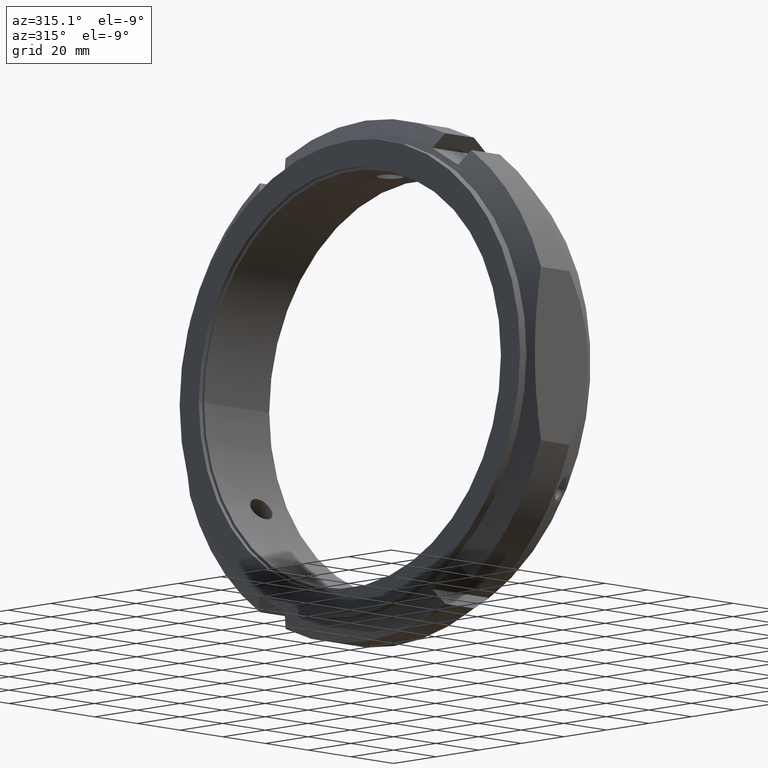
[diagram: clean part render]
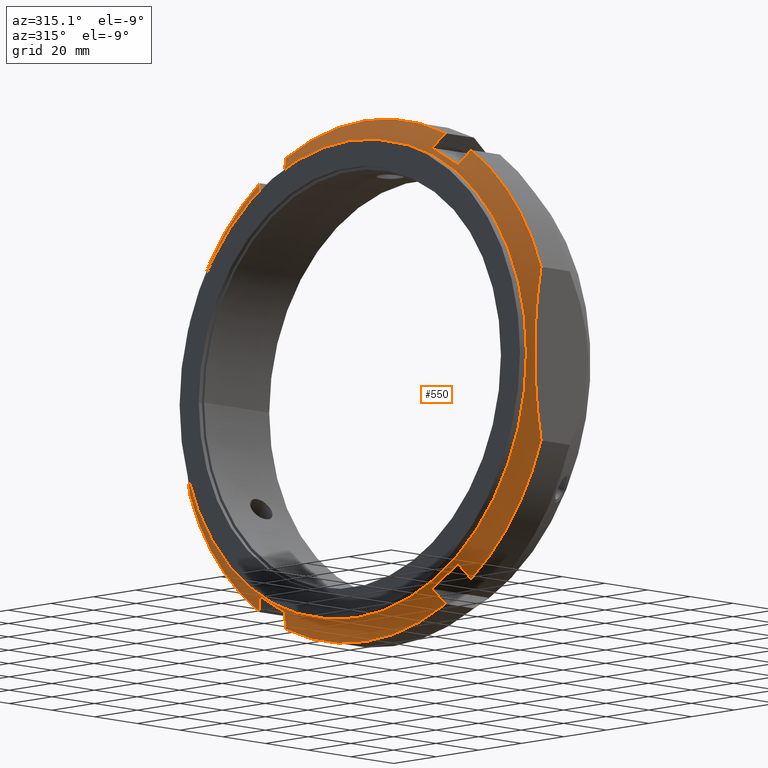
[diagram: same view with one face highlighted and labeled with its STEP entity id]
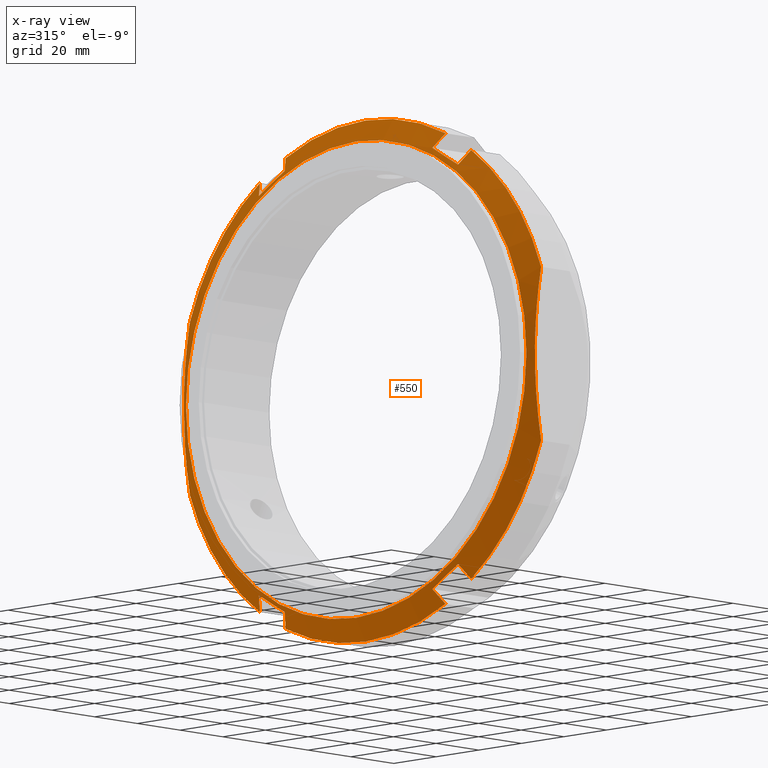
[diagram: x-ray of the same camera — body ghosted, the highlighted face saturated]
A machine part, auxiliary view. The second image highlights one B-rep face of the part: STEP entity #550.
The next image is the same camera in x-ray: the body ghosted, the highlighted face saturated — about 0% of this face is hidden behind the body in this view.
In plain terms, the highlighted conical surface has half-angle 60 deg.
Its self-contained STEP definition (entity closure, byte-faithful):
#73=CARTESIAN_POINT('',(4.039265774886872,46.812177826491151,-67.0810704084317));
#74=VERTEX_POINT('',#73);
#75=CARTESIAN_POINT('',(4.039265774886869,34.687822173509019,-74.0810704084317));
#76=VERTEX_POINT('',#75);
#77=CARTESIAN_POINT('',(4.039265774886872,46.812177826491151,-67.0810704084317));
#78=CARTESIAN_POINT('',(3.693420517558867,40.749999999940826,-70.581070408465905));
#79=CARTESIAN_POINT('',(4.039265774886869,34.687822173509019,-74.0810704084317));
#87=(BOUNDED_CURVE()B_SPLINE_CURVE(2,(#77,#78,#79),.UNSPECIFIED.,.F.,.U.)B_SPLINE_CURVE_WITH_KNOTS((3,3),(2.474416209105868,3.931830742063422),.UNSPECIFIED.)CURVE()GEOMETRIC_REPRESENTATION_ITEM()RATIONAL_B_SPLINE_CURVE((1.034904695295608,1.038714936606102,1.034904695295867))REPRESENTATION_ITEM(''));
#88=EDGE_CURVE('',#74,#76,#87,.T.);
#127=CARTESIAN_POINT('',(7.33012701892216,37.547597453828743,-79.034346492175374));
#128=VERTEX_POINT('',#127);
#129=CARTESIAN_POINT('',(4.039265774886869,34.687822173509019,-74.0810704084317));
#130=CARTESIAN_POINT('',(5.628916710248692,36.069568825908284,-76.474325813575618));
#131=CARTESIAN_POINT('',(7.330127018922168,37.54759745382875,-79.034346492175388));
#139=(BOUNDED_CURVE()B_SPLINE_CURVE(2,(#129,#130,#131),.UNSPECIFIED.,.F.,.U.)B_SPLINE_CURVE_WITH_KNOTS((3,3),(0.481038618437948,1.124755305385583),.UNSPECIFIED.)CURVE()GEOMETRIC_REPRESENTATION_ITEM()RATIONAL_B_SPLINE_CURVE((1.00085385238141,1.000998230660904,1.0))REPRESENTATION_ITEM(''));
#140=EDGE_CURVE('',#76,#128,#139,.T.);
#172=CARTESIAN_POINT('',(7.330127018922157,49.671953106810882,-72.034346492175374));
#173=VERTEX_POINT('',#172);
#174=CARTESIAN_POINT('',(7.33012701892217,49.671953106810889,-72.034346492175402));
#175=CARTESIAN_POINT('',(5.628916710423156,48.193924479042124,-69.474325813838377));
#176=CARTESIAN_POINT('',(4.039265774886872,46.812177826491151,-67.0810704084317));
#184=(BOUNDED_CURVE()B_SPLINE_CURVE(2,(#174,#175,#176),.UNSPECIFIED.,.F.,.U.)B_SPLINE_CURVE_WITH_KNOTS((3,3),(0.0,0.643716686994179),.UNSPECIFIED.)CURVE()GEOMETRIC_REPRESENTATION_ITEM()RATIONAL_B_SPLINE_CURVE((1.0,1.000998230642966,1.000853852365985))REPRESENTATION_ITEM(''));
#185=EDGE_CURVE('',#173,#74,#184,.T.);
#217=CARTESIAN_POINT('',(4.039265774886877,-46.81217782649108,-67.081070408431756));
#218=VERTEX_POINT('',#217);
#219=CARTESIAN_POINT('',(7.33012701892217,-49.671953106810982,-72.034346492175331));
#220=VERTEX_POINT('',#219);
#221=CARTESIAN_POINT('',(4.039265774886877,-46.81217782649108,-67.081070408431756));
#222=CARTESIAN_POINT('',(5.62891670980015,-48.193924478500428,-69.474325812900119));
#223=CARTESIAN_POINT('',(7.330127018922168,-49.671953106810989,-72.034346492175331));
#231=(BOUNDED_CURVE()B_SPLINE_CURVE(2,(#221,#222,#223),.UNSPECIFIED.,.F.,.U.)B_SPLINE_CURVE_WITH_KNOTS((3,3),(0.481038618560556,1.124755305385586),.UNSPECIFIED.)CURVE()GEOMETRIC_REPRESENTATION_ITEM()RATIONAL_B_SPLINE_CURVE((1.000853852416098,1.000998230701203,1.0))REPRESENTATION_ITEM(''));
#232=EDGE_CURVE('',#218,#220,#231,.T.);
#271=CARTESIAN_POINT('',(7.330127018922169,-37.547597453828843,-79.034346492175331));
#272=VERTEX_POINT('',#271);
#273=CARTESIAN_POINT('',(4.039265774886874,-34.687822173508941,-74.081070408431756));
#274=VERTEX_POINT('',#273);
#275=CARTESIAN_POINT('',(7.330127018922168,-37.54759745382885,-79.034346492175331));
#276=CARTESIAN_POINT('',(5.628916712011294,-36.069568827440889,-76.474325816230163));
#277=CARTESIAN_POINT('',(4.039265774886874,-34.687822173508941,-74.081070408431756));
#285=(BOUNDED_CURVE()B_SPLINE_CURVE(2,(#275,#276,#277),.UNSPECIFIED.,.F.,.U.)B_SPLINE_CURVE_WITH_KNOTS((3,3),(0.0,0.6437166874538),.UNSPECIFIED.)CURVE()GEOMETRIC_REPRESENTATION_ITEM()RATIONAL_B_SPLINE_CURVE((1.0,1.000998230550681,1.000853852286231))REPRESENTATION_ITEM(''));
#286=EDGE_CURVE('',#272,#274,#285,.T.);
#325=CARTESIAN_POINT('',(4.039265774886874,-34.687822173508941,-74.081070408431756));
#326=CARTESIAN_POINT('',(3.693420517558866,-40.750000000059273,-70.581070408397551));
#327=CARTESIAN_POINT('',(4.039265774886877,-46.81217782649108,-67.081070408431756));
#335=(BOUNDED_CURVE()B_SPLINE_CURVE(2,(#325,#326,#327),.UNSPECIFIED.,.F.,.U.)B_SPLINE_CURVE_WITH_KNOTS((3,3),(2.474416209105879,3.931830742063433),.UNSPECIFIED.)CURVE()GEOMETRIC_REPRESENTATION_ITEM()RATIONAL_B_SPLINE_CURVE((1.034904695295608,1.038714936606102,1.034904695295867))REPRESENTATION_ITEM(''));
#336=EDGE_CURVE('',#274,#218,#335,.T.);
#356=CARTESIAN_POINT('',(5.165063509461071,0.0,0.0));
#357=DIRECTION('',(1.0,0.0,0.0));
#358=DIRECTION('',(0.0,1.0,0.0));
#359=AXIS2_PLACEMENT_3D('',#356,#357,#358);
#360=CONICAL_SURFACE('',#359,83.75,60.000000000000043);
#361=CARTESIAN_POINT('',(2.999999999999978,80.0,0.0));
#362=VERTEX_POINT('',#361);
#363=CARTESIAN_POINT('',(2.999999999999978,0.0,0.0));
#364=DIRECTION('',(1.0,0.0,0.0));
#365=DIRECTION('',(0.0,1.0,0.0));
#366=AXIS2_PLACEMENT_3D('',#363,#364,#365);
#367=CIRCLE('',#366,80.0);
#368=EDGE_CURVE('',#362,#362,#367,.T.);
#369=ORIENTED_EDGE('',*,*,#368,.T.);
#370=EDGE_LOOP('',(#369));
#371=FACE_OUTER_BOUND('',#370,.T.);
#372=ORIENTED_EDGE('',*,*,#185,.T.);
#373=ORIENTED_EDGE('',*,*,#88,.T.);
#374=ORIENTED_EDGE('',*,*,#140,.T.);
#375=CARTESIAN_POINT('',(7.330127018922164,0.0,0.0));
#376=DIRECTION('',(1.0,0.0,0.0));
#377=DIRECTION('',(0.0,1.0,0.0));
#378=AXIS2_PLACEMENT_3D('',#375,#376,#377);
#379=CIRCLE('',#378,87.5);
#380=EDGE_CURVE('',#272,#128,#379,.T.);
#381=ORIENTED_EDGE('',*,*,#380,.F.);
#382=ORIENTED_EDGE('',*,*,#286,.T.);
#383=ORIENTED_EDGE('',*,*,#336,.T.);
#384=ORIENTED_EDGE('',*,*,#232,.T.);
#385=CARTESIAN_POINT('',(7.330127018922164,-82.500000000000014,-29.154759474226442));
#386=VERTEX_POINT('',#385);
#387=CARTESIAN_POINT('',(7.330127018922164,0.0,0.0));
#388=DIRECTION('',(1.0,0.0,0.0));
#389=DIRECTION('',(0.0,1.0,0.0));
#390=AXIS2_PLACEMENT_3D('',#387,#388,#389);
#391=CIRCLE('',#390,87.5);
#392=EDGE_CURVE('',#386,#220,#391,.T.);
#393=ORIENTED_EDGE('',*,*,#392,.F.);
#394=CARTESIAN_POINT('',(7.330127018922164,-82.500000000000057,29.15475947422637));
#395=VERTEX_POINT('',#394);
#396=CARTESIAN_POINT('',(7.330127018922164,-82.500000000000028,-29.154759474226438));
#397=CARTESIAN_POINT('',(1.721581546794422,-82.500000000000028,-4.330525E-014));
#398=CARTESIAN_POINT('',(7.330127018922166,-82.500000000000057,29.15475947422636));
#406=(BOUNDED_CURVE()B_SPLINE_CURVE(2,(#396,#397,#398),.UNSPECIFIED.,.F.,.U.)B_SPLINE_CURVE_WITH_KNOTS((3,3),(0.0,5.859465277082294),.UNSPECIFIED.)CURVE()GEOMETRIC_REPRESENTATION_ITEM()RATIONAL_B_SPLINE_CURVE((1.0,1.060606060606062,1.0))REPRESENTATION_ITEM(''));
#407=EDGE_CURVE('',#386,#395,#406,.T.);
#408=ORIENTED_EDGE('',*,*,#407,.T.);
#409=CARTESIAN_POINT('',(7.330127018922164,-49.671953106810989,72.034346492175331));
#410=VERTEX_POINT('',#409);
#411=CARTESIAN_POINT('',(7.330127018922164,0.0,0.0));
#412=DIRECTION('',(1.0,0.0,0.0));
#413=DIRECTION('',(0.0,1.0,0.0));
#414=AXIS2_PLACEMENT_3D('',#411,#412,#413);
#415=CIRCLE('',#414,87.5);
#416=EDGE_CURVE('',#410,#395,#415,.T.);
#417=ORIENTED_EDGE('',*,*,#416,.F.);
#418=CARTESIAN_POINT('',(4.039265774886877,-46.81217782649108,67.081070408431756));
#419=VERTEX_POINT('',#418);
#420=CARTESIAN_POINT('',(7.330127018922166,-49.671953106810989,72.034346492175331));
#421=CARTESIAN_POINT('',(5.628916709828499,-48.193924478525069,69.474325812942794));
#422=CARTESIAN_POINT('',(4.039265774886877,-46.81217782649108,67.081070408431756));
#430=(BOUNDED_CURVE()B_SPLINE_CURVE(2,(#420,#421,#422),.UNSPECIFIED.,.F.,.U.)B_SPLINE_CURVE_WITH_KNOTS((3,3),(0.0,0.643716686824138),.UNSPECIFIED.)CURVE()GEOMETRIC_REPRESENTATION_ITEM()RATIONAL_B_SPLINE_CURVE((1.0,1.000998230681592,1.000853852399325))REPRESENTATION_ITEM(''));
#431=EDGE_CURVE('',#410,#419,#430,.T.);
#432=ORIENTED_EDGE('',*,*,#431,.T.);
#433=CARTESIAN_POINT('',(4.039265774886874,-34.687822173508941,74.081070408431756));
#434=VERTEX_POINT('',#433);
#435=CARTESIAN_POINT('',(4.039265774886877,-46.81217782649108,67.081070408431756));
#436=CARTESIAN_POINT('',(3.693420517558869,-40.749999999940741,70.581070408465962));
#437=CARTESIAN_POINT('',(4.039265774886874,-34.687822173508941,74.081070408431756));
#445=(BOUNDED_CURVE()B_SPLINE_CURVE(2,(#435,#436,#437),.UNSPECIFIED.,.F.,.U.)B_SPLINE_CURVE_WITH_KNOTS((3,3),(2.474416209105868,3.931830742063421),.UNSPECIFIED.)CURVE()GEOMETRIC_REPRESENTATION_ITEM()RATIONAL_B_SPLINE_CURVE((1.034904695295607,1.038714936606101,1.034904695295866))REPRESENTATION_ITEM(''));
#446=EDGE_CURVE('',#419,#434,#445,.T.);
#447=ORIENTED_EDGE('',*,*,#446,.T.);
#448=CARTESIAN_POINT('',(7.330127018922164,-37.54759745382885,79.034346492175331));
#449=VERTEX_POINT('',#448);
#450=CARTESIAN_POINT('',(4.039265774886874,-34.687822173508941,74.081070408431756));
#451=CARTESIAN_POINT('',(5.628916712011302,-36.069568827440889,76.474325816230163));
#452=CARTESIAN_POINT('',(7.330127018922167,-37.54759745382885,79.034346492175331));
#460=(BOUNDED_CURVE()B_SPLINE_CURVE(2,(#450,#451,#452),.UNSPECIFIED.,.F.,.U.)B_SPLINE_CURVE_WITH_KNOTS((3,3),(0.481038617931787,1.124755305385587),.UNSPECIFIED.)CURVE()GEOMETRIC_REPRESENTATION_ITEM()RATIONAL_B_SPLINE_CURVE((1.000853852286229,1.000998230550679,1.0))REPRESENTATION_ITEM(''));
#461=EDGE_CURVE('',#434,#449,#460,.T.);
#462=ORIENTED_EDGE('',*,*,#461,.T.);
#463=CARTESIAN_POINT('',(7.330127018922164,37.547597453828743,79.034346492175374));
#464=VERTEX_POINT('',#463);
#465=CARTESIAN_POINT('',(7.330127018922164,0.0,0.0));
#466=DIRECTION('',(1.0,0.0,0.0));
#467=DIRECTION('',(0.0,1.0,0.0));
#468=AXIS2_PLACEMENT_3D('',#465,#466,#467);
#469=CIRCLE('',#468,87.5);
#470=EDGE_CURVE('',#464,#449,#469,.T.);
#471=ORIENTED_EDGE('',*,*,#470,.F.);
#472=CARTESIAN_POINT('',(4.039265774886869,34.687822173509019,74.0810704084317));
#473=VERTEX_POINT('',#472);
#474=CARTESIAN_POINT('',(7.330127018922166,37.54759745382875,79.034346492175388));
#475=CARTESIAN_POINT('',(5.62891671026941,36.069568825926282,76.474325813606811));
#476=CARTESIAN_POINT('',(4.039265774886869,34.687822173509019,74.0810704084317));
#484=(BOUNDED_CURVE()B_SPLINE_CURVE(2,(#474,#475,#476),.UNSPECIFIED.,.F.,.U.)B_SPLINE_CURVE_WITH_KNOTS((3,3),(0.0,0.643716686947043),.UNSPECIFIED.)CURVE()GEOMETRIC_REPRESENTATION_ITEM()RATIONAL_B_SPLINE_CURVE((1.0,1.000998230646688,1.000853852369251))REPRESENTATION_ITEM(''));
#485=EDGE_CURVE('',#464,#473,#484,.T.);
#486=ORIENTED_EDGE('',*,*,#485,.T.);
#487=CARTESIAN_POINT('',(4.039265774886872,46.812177826491151,67.0810704084317));
#488=VERTEX_POINT('',#487);
#489=CARTESIAN_POINT('',(4.039265774886869,34.687822173509019,74.0810704084317));
#490=CARTESIAN_POINT('',(3.693420517558863,40.750000000059352,70.58107040839748));
#491=CARTESIAN_POINT('',(4.039265774886872,46.812177826491151,67.0810704084317));
#499=(BOUNDED_CURVE()B_SPLINE_CURVE(2,(#489,#490,#491),.UNSPECIFIED.,.F.,.U.)B_SPLINE_CURVE_WITH_KNOTS((3,3),(2.474416209105883,3.931830742063438),.UNSPECIFIED.)CURVE()GEOMETRIC_REPRESENTATION_ITEM()RATIONAL_B_SPLINE_CURVE((1.034904695295608,1.038714936606102,1.034904695295867))REPRESENTATION_ITEM(''));
#500=EDGE_CURVE('',#473,#488,#499,.T.);
#501=ORIENTED_EDGE('',*,*,#500,.T.);
#502=CARTESIAN_POINT('',(7.330127018922164,49.671953106810903,72.034346492175388));
#503=VERTEX_POINT('',#502);
#504=CARTESIAN_POINT('',(4.039265774886872,46.812177826491151,67.0810704084317));
#505=CARTESIAN_POINT('',(5.62891671041767,48.193924479037342,69.474325813830106));
#506=CARTESIAN_POINT('',(7.330127018922168,49.671953106810882,72.034346492175388));
#514=(BOUNDED_CURVE()B_SPLINE_CURVE(2,(#504,#505,#506),.UNSPECIFIED.,.F.,.U.)B_SPLINE_CURVE_WITH_KNOTS((3,3),(0.481038618391855,1.124755305385587),.UNSPECIFIED.)CURVE()GEOMETRIC_REPRESENTATION_ITEM()RATIONAL_B_SPLINE_CURVE((1.000853852368187,1.00099823064554,1.0))REPRESENTATION_ITEM(''));
#515=EDGE_CURVE('',#488,#503,#514,.T.);
#516=ORIENTED_EDGE('',*,*,#515,.T.);
#517=CARTESIAN_POINT('',(7.330127018922164,82.500000000000071,29.154759474226321));
#518=VERTEX_POINT('',#517);
#519=CARTESIAN_POINT('',(7.330127018922164,0.0,0.0));
#520=DIRECTION('',(1.0,0.0,0.0));
#521=DIRECTION('',(0.0,1.0,0.0));
#522=AXIS2_PLACEMENT_3D('',#519,#520,#521);
#523=CIRCLE('',#522,87.5);
#524=EDGE_CURVE('',#518,#503,#523,.T.);
#525=ORIENTED_EDGE('',*,*,#524,.F.);
#526=CARTESIAN_POINT('',(7.330127018922164,82.500000000000028,-29.154759474226392));
#527=VERTEX_POINT('',#526);
#528=CARTESIAN_POINT('',(7.330127018922166,82.500000000000057,29.154759474226335));
#529=CARTESIAN_POINT('',(1.721581546794432,82.500000000000028,-4.386364E-014));
#530=CARTESIAN_POINT('',(7.330127018922163,82.500000000000028,-29.154759474226406));
#538=(BOUNDED_CURVE()B_SPLINE_CURVE(2,(#528,#529,#530),.UNSPECIFIED.,.F.,.U.)B_SPLINE_CURVE_WITH_KNOTS((3,3),(0.0,5.859465277082289),.UNSPECIFIED.)CURVE()GEOMETRIC_REPRESENTATION_ITEM()RATIONAL_B_SPLINE_CURVE((1.0,1.060606060606066,1.0))REPRESENTATION_ITEM(''));
#539=EDGE_CURVE('',#518,#527,#538,.T.);
#540=ORIENTED_EDGE('',*,*,#539,.T.);
#541=CARTESIAN_POINT('',(7.330127018922164,0.0,0.0));
#542=DIRECTION('',(1.0,0.0,0.0));
#543=DIRECTION('',(0.0,1.0,0.0));
#544=AXIS2_PLACEMENT_3D('',#541,#542,#543);
#545=CIRCLE('',#544,87.5);
#546=EDGE_CURVE('',#173,#527,#545,.T.);
#547=ORIENTED_EDGE('',*,*,#546,.F.);
#548=EDGE_LOOP('',(#372,#373,#374,#381,#382,#383,#384,#393,#408,#417,#432,#447,#462,#471,#486,#501,#516,#525,#540,#547));
#549=FACE_BOUND('',#548,.T.);
#550=ADVANCED_FACE('',(#371,#549),#360,.T.);